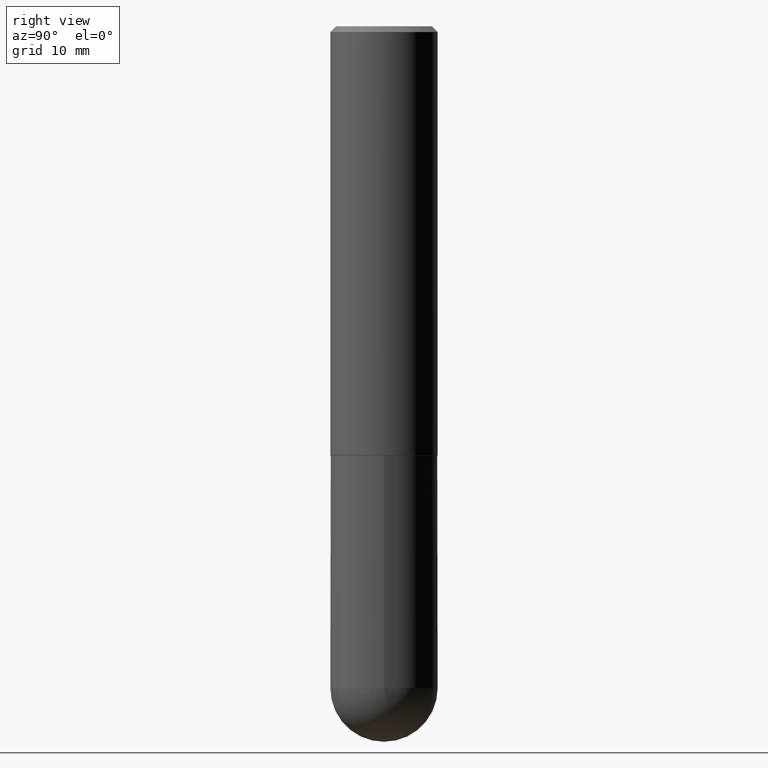
[diagram: clean part render]
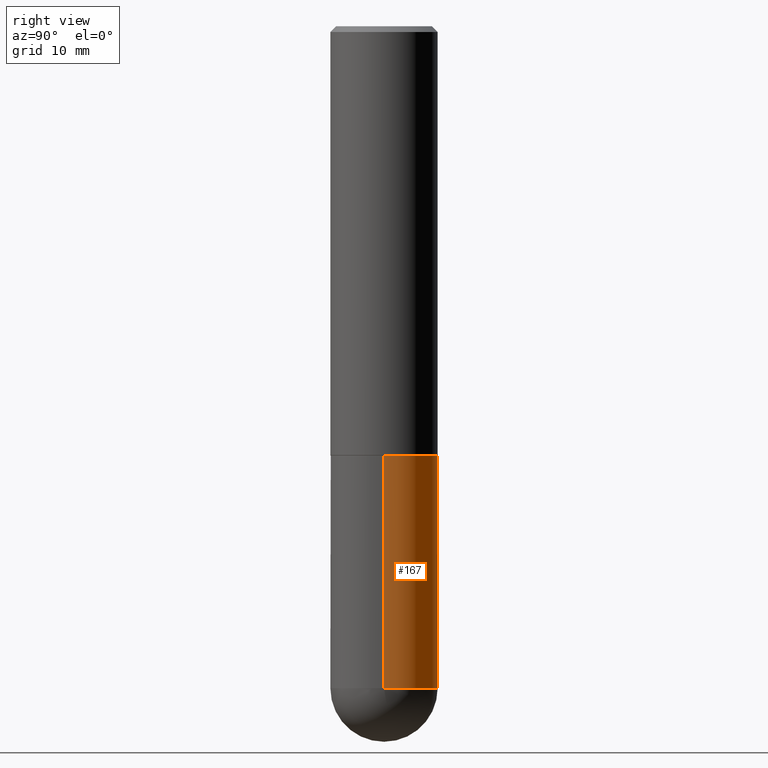
[diagram: same view with one face highlighted and labeled with its STEP entity id]
A machine part, right view. The second image highlights one B-rep face of the part: STEP entity #167.
In plain terms, the highlighted cylindrical surface (partial cylindrical patch) has radius 4.7625 mm, axis along (-0, 0, 1).
Its self-contained STEP definition (entity closure, byte-faithful):
#34 = VECTOR ( 'NONE', #287, 39.37007874015748143 ) ;
#40 = CARTESIAN_POINT ( 'NONE',  ( -0.1874999999999999722, -5.323368672619559170E-15, -2.312500000000000000 ) ) ;
#47 = FACE_OUTER_BOUND ( 'NONE', #73, .T. ) ;
#49 = DIRECTION ( 'NONE',  ( 1.000000000000000000, -6.982962677686266711E-15, 0.000000000000000000 ) ) ;
#50 = VERTEX_POINT ( 'NONE', #92 ) ;
#73 = EDGE_LOOP ( 'NONE', ( #372, #253, #332, #344, #147 ) ) ;
#85 = AXIS2_PLACEMENT_3D ( 'NONE', #280, #219, #338 ) ;
#92 = CARTESIAN_POINT ( 'NONE',  ( -0.1875000000000000278, -5.323368672619557593E-15, -1.499999999999999778 ) ) ;
#101 = EDGE_CURVE ( 'NONE', #285, #245, #257, .T. ) ;
#107 = CIRCLE ( 'NONE', #85, 0.1874999999999999722 ) ;
#120 = DIRECTION ( 'NONE',  ( 1.000000000000000000, -6.982962677686266711E-15, 4.876176775795935793E-29 ) ) ;
#131 = CARTESIAN_POINT ( 'NONE',  ( 0.1875000000000000278, -6.546527510330893185E-15, -1.499999999999999778 ) ) ;
#147 = ORIENTED_EDGE ( 'NONE', *, *, #101, .T. ) ;
#157 = EDGE_CURVE ( 'NONE', #245, #341, #107, .T. ) ;
#166 = AXIS2_PLACEMENT_3D ( 'NONE', #181, #406, #120 ) ;
#167 = ADVANCED_FACE ( 'NONE', ( #47 ), #311, .T. ) ;
#180 = DIRECTION ( 'NONE',  ( -2.445468806185136597E-29, 3.491481338843145583E-15, 1.000000000000000000 ) ) ;
#181 = CARTESIAN_POINT ( 'NONE',  ( 0.000000000000000000, 0.000000000000000000, 0.000000000000000000 ) ) ;
#183 = EDGE_CURVE ( 'NONE', #270, #50, #207, .T. ) ;
#207 = CIRCLE ( 'NONE', #307, 0.1875000000000000278 ) ;
#219 = DIRECTION ( 'NONE',  ( -2.445468806185136597E-29, 3.491481338843145583E-15, 1.000000000000000000 ) ) ;
#231 = AXIS2_PLACEMENT_3D ( 'NONE', #335, #367, #247 ) ;
#245 = VERTEX_POINT ( 'NONE', #274 ) ;
#247 = DIRECTION ( 'NONE',  ( 1.000000000000000000, -6.982962677686263555E-15, 0.000000000000000000 ) ) ;
#253 = ORIENTED_EDGE ( 'NONE', *, *, #393, .T. ) ;
#257 = CIRCLE ( 'NONE', #231, 0.1874999999999999722 ) ;
#261 = LINE ( 'NONE', #266, #324 ) ;
#266 = CARTESIAN_POINT ( 'NONE',  ( 0.1874999999999999722, -1.309305502066174811E-15, 9.142831454617378210E-30 ) ) ;
#270 = VERTEX_POINT ( 'NONE', #131 ) ;
#274 = CARTESIAN_POINT ( 'NONE',  ( 1.309305502066230623E-15, 0.1874999999999918399, -2.312500000000000444 ) ) ;
#280 = CARTESIAN_POINT ( 'NONE',  ( 5.655146614303128380E-29, -8.074050596074775072E-15, -2.312500000000000000 ) ) ;
#285 = VERTEX_POINT ( 'NONE', #410 ) ;
#287 = DIRECTION ( 'NONE',  ( -2.445468806185136877E-29, 3.491481338843145188E-15, 1.000000000000000000 ) ) ;
#292 = DIRECTION ( 'NONE',  ( -2.445468806185136877E-29, 3.491481338843145188E-15, 1.000000000000000000 ) ) ;
#294 = CARTESIAN_POINT ( 'NONE',  ( -0.1874999999999999722, 1.332267629550187651E-15, -9.223003294227946589E-30 ) ) ;
#303 = CARTESIAN_POINT ( 'NONE',  ( 3.668203209277704335E-29, -5.237222008264717388E-15, -1.499999999999999778 ) ) ;
#307 = AXIS2_PLACEMENT_3D ( 'NONE', #303, #180, #49 ) ;
#311 = CYLINDRICAL_SURFACE ( 'NONE', #166, 0.1874999999999999722 ) ;
#320 = EDGE_CURVE ( 'NONE', #285, #270, #261, .T. ) ;
#324 = VECTOR ( 'NONE', #292, 39.37007874015748143 ) ;
#332 = ORIENTED_EDGE ( 'NONE', *, *, #183, .F. ) ;
#335 = CARTESIAN_POINT ( 'NONE',  ( 5.655146614303128380E-29, -8.074050596074775072E-15, -2.312500000000000000 ) ) ;
#338 = DIRECTION ( 'NONE',  ( 1.000000000000000000, -6.982962677686263555E-15, 0.000000000000000000 ) ) ;
#341 = VERTEX_POINT ( 'NONE', #40 ) ;
#344 = ORIENTED_EDGE ( 'NONE', *, *, #320, .F. ) ;
#367 = DIRECTION ( 'NONE',  ( -2.445468806185136597E-29, 3.491481338843145583E-15, 1.000000000000000000 ) ) ;
#372 = ORIENTED_EDGE ( 'NONE', *, *, #157, .T. ) ;
#381 = LINE ( 'NONE', #294, #34 ) ;
#393 = EDGE_CURVE ( 'NONE', #341, #50, #381, .T. ) ;
#406 = DIRECTION ( 'NONE',  ( -2.445468806185136597E-29, 3.491481338843145583E-15, 1.000000000000000000 ) ) ;
#410 = CARTESIAN_POINT ( 'NONE',  ( 0.1874999999999999722, -7.964941804235921238E-15, -2.312500000000000000 ) ) ;